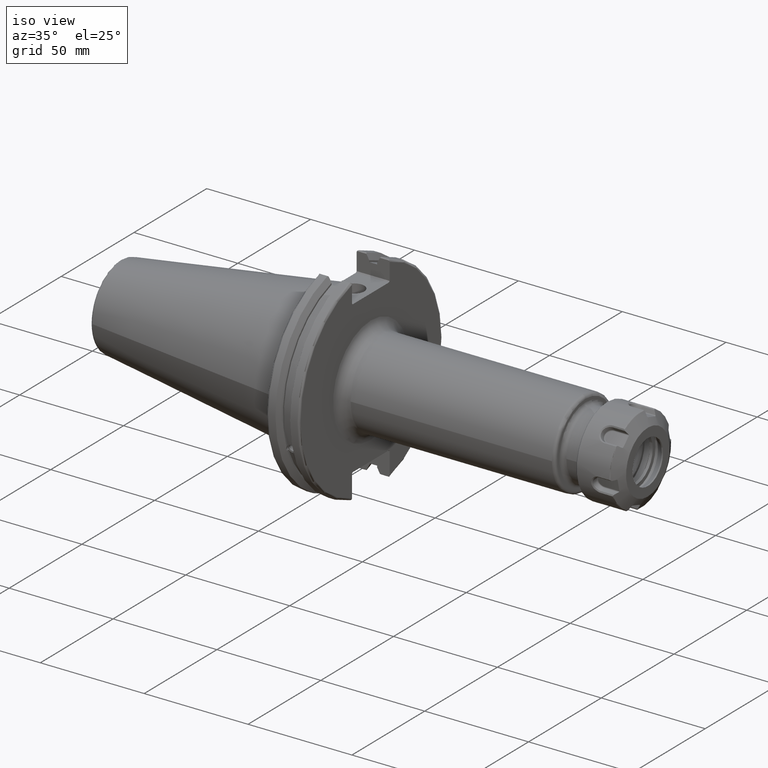
[diagram: clean part render]
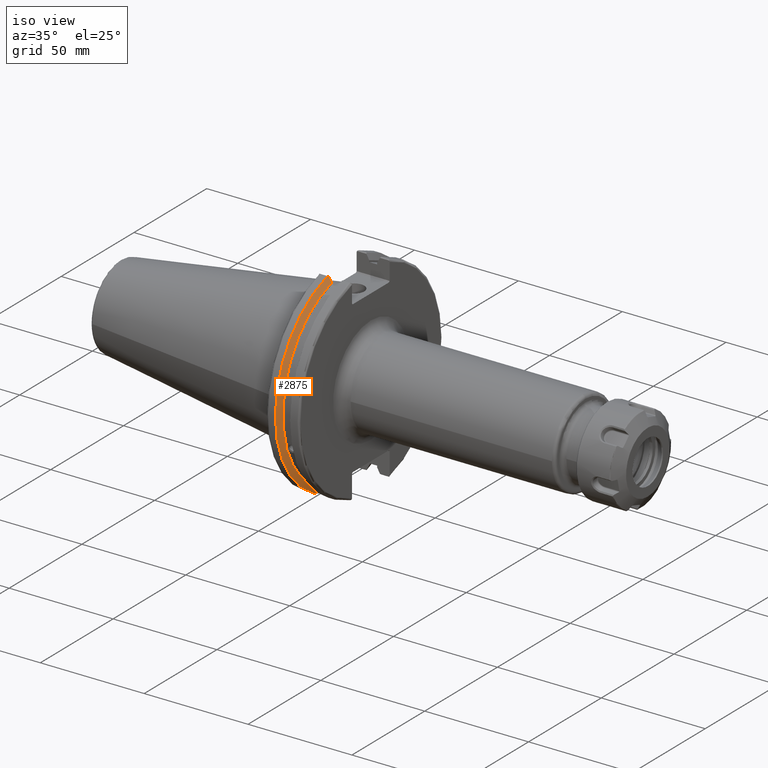
[diagram: same view with one face highlighted and labeled with its STEP entity id]
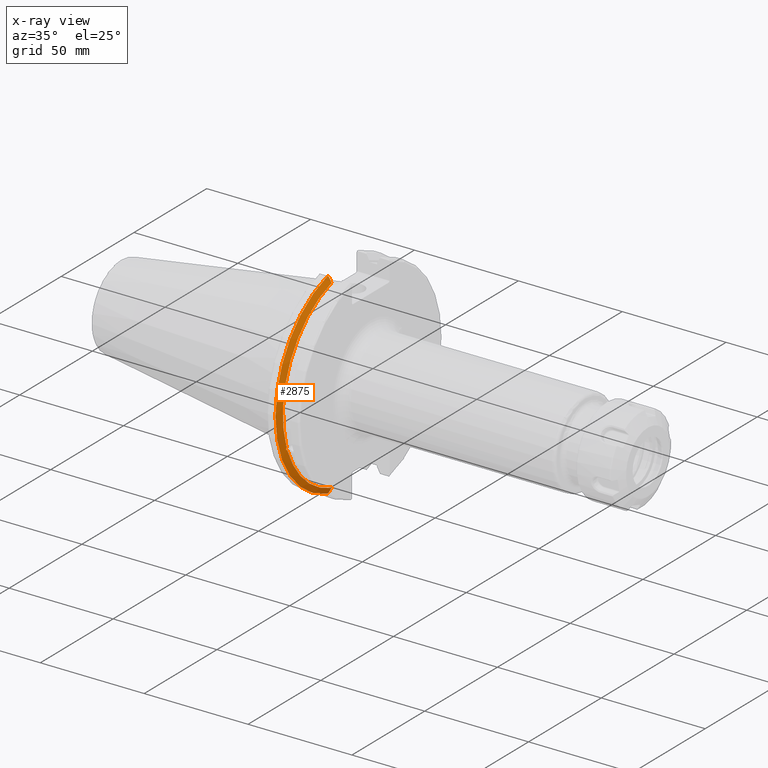
[diagram: x-ray of the same camera — body ghosted, the highlighted face saturated]
A machine part, iso view. The second image highlights one B-rep face of the part: STEP entity #2875.
The next image is the same camera in x-ray: the body ghosted, the highlighted face saturated — about 0% of this face is hidden behind the body in this view.
In plain terms, the highlighted conical surface has half-angle 60 deg.
Its self-contained STEP definition (entity closure, byte-faithful):
#46=(
BOUNDED_CURVE()
B_SPLINE_CURVE(2,(#4912,#4913,#4914),.UNSPECIFIED.,.F.,.F.)
B_SPLINE_CURVE_WITH_KNOTS((3,3),(0.,0.275823910674601),.UNSPECIFIED.)
CURVE()
GEOMETRIC_REPRESENTATION_ITEM()
RATIONAL_B_SPLINE_CURVE((1.,1.00038235573593,1.00012873636487))
REPRESENTATION_ITEM('')
);
#47=(
BOUNDED_CURVE()
B_SPLINE_CURVE(2,(#4924,#4925,#4926),.UNSPECIFIED.,.F.,.F.)
B_SPLINE_CURVE_WITH_KNOTS((3,3),(0.0558332664507492,0.331657177124507),
 .UNSPECIFIED.)
CURVE()
GEOMETRIC_REPRESENTATION_ITEM()
RATIONAL_B_SPLINE_CURVE((1.00012873636807,1.00038235574544,1.))
REPRESENTATION_ITEM('')
);
#48=(
BOUNDED_CURVE()
B_SPLINE_CURVE(2,(#4959,#4960,#4961),.UNSPECIFIED.,.F.,.F.)
B_SPLINE_CURVE_WITH_KNOTS((3,3),(0.,0.0648240472897372),.UNSPECIFIED.)
CURVE()
GEOMETRIC_REPRESENTATION_ITEM()
RATIONAL_B_SPLINE_CURVE((1.,1.00011477674836,1.00019140645948))
REPRESENTATION_ITEM('')
);
#49=(
BOUNDED_CURVE()
B_SPLINE_CURVE(2,(#4967,#4968,#4969),.UNSPECIFIED.,.F.,.F.)
B_SPLINE_CURVE_WITH_KNOTS((3,3),(0.325260944932348,0.390084992222201),
 .UNSPECIFIED.)
CURVE()
GEOMETRIC_REPRESENTATION_ITEM()
RATIONAL_B_SPLINE_CURVE((1.00019140645916,1.00011477674817,1.))
REPRESENTATION_ITEM('')
);
#163=CONICAL_SURFACE('',#3198,47.8172386482472,1.0471975511966);
#209=B_SPLINE_CURVE_WITH_KNOTS('',3,(#4441,#4442,#4443,#4444,#4445,#4446,
#4447,#4448,#4449,#4450,#4451,#4452,#4453,#4454),.UNSPECIFIED.,.F.,.F.,
(4,2,2,2,2,2,4),(0.426712868358723,0.441644498666907,0.48031331322313,0.518982127779354,
0.557650942335577,0.596319756891801,0.611251387199986),.UNSPECIFIED.);
#375=FACE_OUTER_BOUND('',#565,.T.);
#565=EDGE_LOOP('',(#2320,#2321,#2322,#2323,#2324,#2325,#2326,#2327));
#1065=CIRCLE('',#3097,46.4219772964944);
#1091=CIRCLE('',#3152,49.2125);
#1107=CIRCLE('',#3199,46.4219772964944);
#1212=VERTEX_POINT('',#4438);
#1213=VERTEX_POINT('',#4440);
#1230=VERTEX_POINT('',#4530);
#1292=VERTEX_POINT('',#4909);
#1293=VERTEX_POINT('',#4911);
#1296=VERTEX_POINT('',#4923);
#1300=VERTEX_POINT('',#4957);
#1301=VERTEX_POINT('',#4963);
#1506=EDGE_CURVE('',#1213,#1212,#209,.T.);
#1529=EDGE_CURVE('',#1213,#1230,#1065,.T.);
#1615=EDGE_CURVE('',#1293,#1292,#46,.T.);
#1621=EDGE_CURVE('',#1296,#1230,#47,.T.);
#1629=EDGE_CURVE('',#1300,#1292,#48,.T.);
#1631=EDGE_CURVE('',#1300,#1301,#1091,.T.);
#1632=EDGE_CURVE('',#1296,#1301,#49,.T.);
#1674=EDGE_CURVE('',#1293,#1212,#1107,.T.);
#2320=ORIENTED_EDGE('',*,*,#1506,.T.);
#2321=ORIENTED_EDGE('',*,*,#1674,.F.);
#2322=ORIENTED_EDGE('',*,*,#1615,.T.);
#2323=ORIENTED_EDGE('',*,*,#1629,.F.);
#2324=ORIENTED_EDGE('',*,*,#1631,.T.);
#2325=ORIENTED_EDGE('',*,*,#1632,.F.);
#2326=ORIENTED_EDGE('',*,*,#1621,.T.);
#2327=ORIENTED_EDGE('',*,*,#1529,.F.);
#2875=ADVANCED_FACE('',(#375),#163,.T.);
#3097=AXIS2_PLACEMENT_3D('',#4531,#3498,#3499);
#3152=AXIS2_PLACEMENT_3D('',#4965,#3652,#3653);
#3198=AXIS2_PLACEMENT_3D('',#5081,#3765,#3766);
#3199=AXIS2_PLACEMENT_3D('',#5082,#3767,#3768);
#3498=DIRECTION('center_axis',(1.,0.,0.));
#3499=DIRECTION('ref_axis',(0.,0.,-1.));
#3652=DIRECTION('center_axis',(1.,0.,0.));
#3653=DIRECTION('ref_axis',(0.,0.,-1.));
#3765=DIRECTION('center_axis',(-1.,0.,0.));
#3766=DIRECTION('ref_axis',(0.,-1.,-1.22464679914735E-16));
#3767=DIRECTION('center_axis',(1.,0.,0.));
#3768=DIRECTION('ref_axis',(0.,0.,-1.));
#4438=CARTESIAN_POINT('',(9.2191,-43.9096390749305,-15.0646464421033));
#4440=CARTESIAN_POINT('',(9.2191,-43.3201030900029,-16.6843832486479));
#4441=CARTESIAN_POINT('Ctrl Pts',(9.21909999999999,-43.3201030900029,-16.6843832486479));
#4442=CARTESIAN_POINT('Ctrl Pts',(9.20211843903391,-43.3613106941341,-16.6592273018006));
#4443=CARTESIAN_POINT('Ctrl Pts',(9.18608675403322,-43.4012416983557,-16.6326763251437));
#4444=CARTESIAN_POINT('Ctrl Pts',(9.13238673845037,-43.5391037343221,-16.5325130832406));
#4445=CARTESIAN_POINT('Ctrl Pts',(9.09621610663555,-43.6406982153491,-16.4411807953719));
#4446=CARTESIAN_POINT('Ctrl Pts',(9.04690868251975,-43.8110833825827,-16.2291323464527));
#4447=CARTESIAN_POINT('Ctrl Pts',(9.0341,-43.8794096049168,-16.10796730316));
#4448=CARTESIAN_POINT('Ctrl Pts',(9.03409999999999,-43.9675796948952,-15.8657219718732));
#4449=CARTESIAN_POINT('Ctrl Pts',(9.04690868251975,-43.9931221605126,-15.7289849146254));
#4450=CARTESIAN_POINT('Ctrl Pts',(9.09621610663555,-43.9989016655819,-15.4570249042867));
#4451=CARTESIAN_POINT('Ctrl Pts',(9.13238673845037,-43.9797830409458,-15.3217566390708));
#4452=CARTESIAN_POINT('Ctrl Pts',(9.18608675403322,-43.9385582852181,-15.1564111356409));
#4453=CARTESIAN_POINT('Ctrl Pts',(9.20211843903391,-43.9250360001461,-15.1104047527575));
#4454=CARTESIAN_POINT('Ctrl Pts',(9.2191,-43.9096390749305,-15.0646464421033));
#4530=CARTESIAN_POINT('',(9.2191,-12.95,-44.5791147973604));
#4531=CARTESIAN_POINT('Origin',(9.2191,0.,0.));
#4909=CARTESIAN_POINT('',(7.88638960562424,-12.95,46.9780755322918));
#4911=CARTESIAN_POINT('',(9.2191,-12.95,44.5791147973604));
#4912=CARTESIAN_POINT('Ctrl Pts',(9.2191,-12.95,44.5791147973604));
#4913=CARTESIAN_POINT('Ctrl Pts',(8.57020449055857,-12.95,45.7494966802148));
#4914=CARTESIAN_POINT('Ctrl Pts',(7.88638960562424,-12.95,46.9780755322918));
#4923=CARTESIAN_POINT('',(7.88638960562425,-12.95,-46.9780755322918));
#4924=CARTESIAN_POINT('Ctrl Pts',(7.88638960562425,-12.95,-46.9780755322918));
#4925=CARTESIAN_POINT('Ctrl Pts',(8.57020449054166,-12.95,-45.7494966802452));
#4926=CARTESIAN_POINT('Ctrl Pts',(9.2191,-12.95,-44.5791147973604));
#4957=CARTESIAN_POINT('',(7.60799096595127,-13.4317035994433,47.3440544806494));
#4959=CARTESIAN_POINT('Ctrl Pts',(7.60799096595126,-13.4317035994433,47.3440544806494));
#4960=CARTESIAN_POINT('Ctrl Pts',(7.7482689666382,-13.1896660169966,47.1601640966265));
#4961=CARTESIAN_POINT('Ctrl Pts',(7.88638960562424,-12.95,46.9780755322918));
#4963=CARTESIAN_POINT('',(7.60799096595127,-13.4317035994433,-47.3440544806494));
#4965=CARTESIAN_POINT('Origin',(7.60799096595127,0.,0.));
#4967=CARTESIAN_POINT('Ctrl Pts',(7.88638960562425,-12.95,-46.9780755322918));
#4968=CARTESIAN_POINT('Ctrl Pts',(7.74826896663813,-13.1896660169967,-47.1601640966265));
#4969=CARTESIAN_POINT('Ctrl Pts',(7.60799096595127,-13.4317035994434,-47.3440544806494));
#5081=CARTESIAN_POINT('Origin',(8.41354548297563,0.,0.));
#5082=CARTESIAN_POINT('Origin',(9.2191,0.,0.));